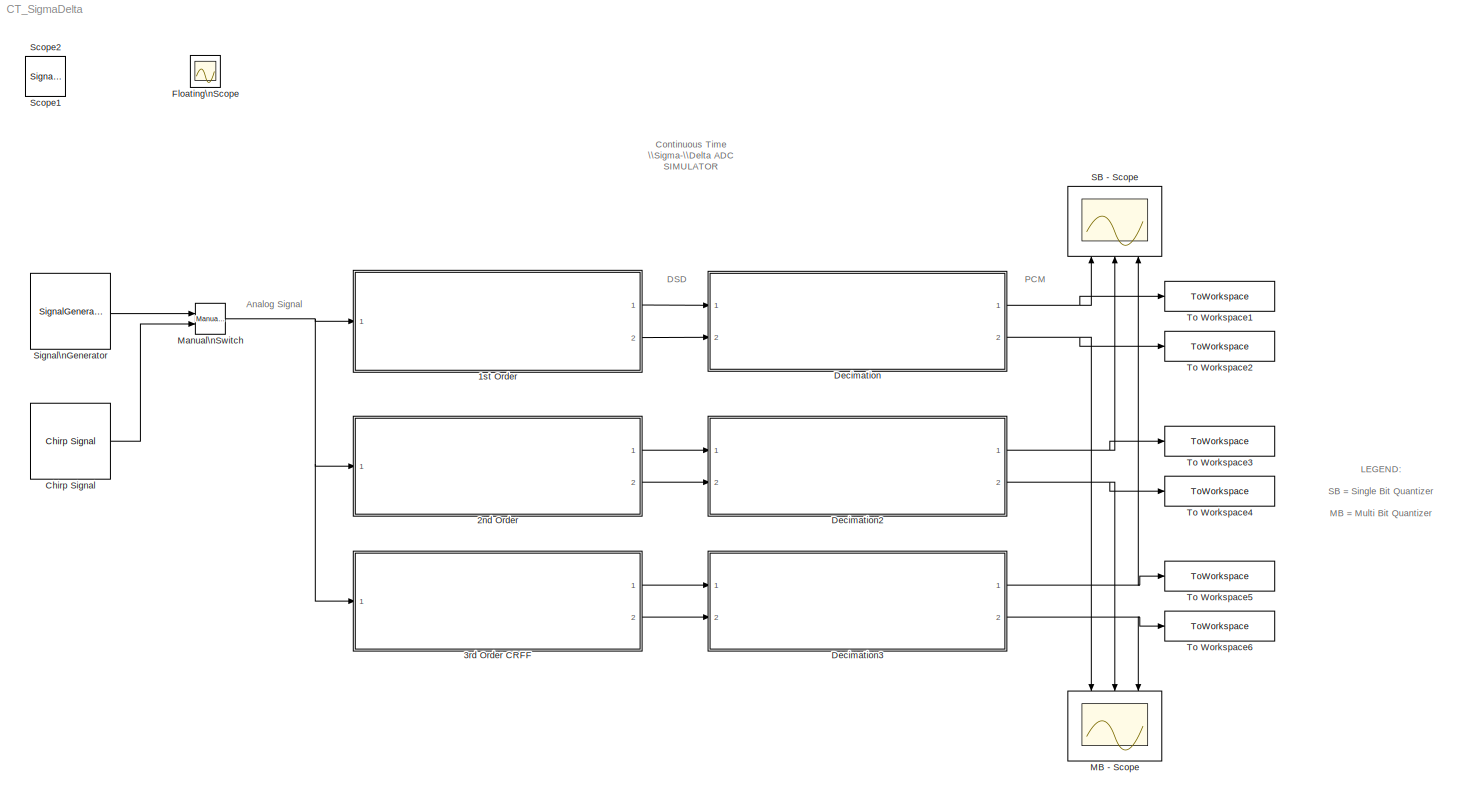
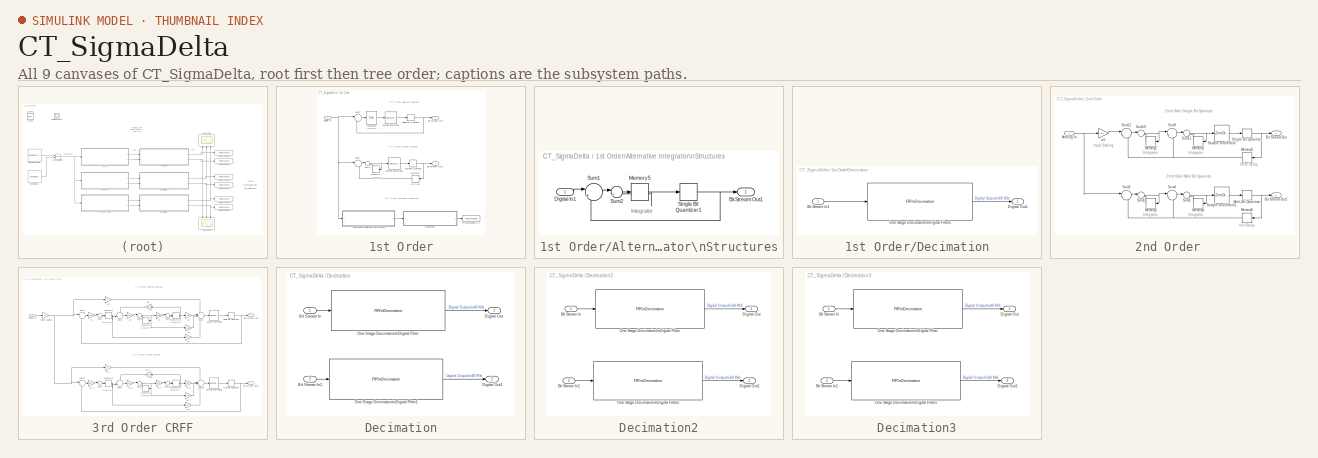
[diagram: thumbnail index - all 9 canvases of the model, root first then tree order]
MODEL CT_SigmaDelta
KIND model
CONFIG PreLoadFcn = load one_stage.mat
BLOCK [SubSystem] 1st Order
  FunctionWithSeparateData = off
  MaskHideContents = off
  MinAlgLoopOccurrences = off
  Opaque = off
  Ports = [1, 2]
  PropExecContextOutsideSubsystem = off
  RTWSystemCode = Auto
  RequestExecContextInheritance = off
  SID = 99
BLOCK [SubSystem] 1st Order/Alternative Integrator\nStructures
  FunctionWithSeparateData = off
  MaskHideContents = off
  MinAlgLoopOccurrences = off
  Opaque = off
  Ports = [1, 1]
  PropExecContextOutsideSubsystem = off
  RTWSystemCode = Auto
  RequestExecContextInheritance = off
  SID = 835
BLOCK [Outport] 1st Order/Alternative Integrator\nStructures/Bit Stream Out1
  IconDisplay = Port number
  OutDataTypeStr = double
  SID = 847
BLOCK [Inport] 1st Order/Alternative Integrator\nStructures/Digital In1
  IconDisplay = Port number
  SID = 837
BLOCK [Memory] 1st Order/Alternative Integrator\nStructures/Memory5
  InheritSampleTime = on
  LinearizeAsDelay = on
  SID = 861
BLOCK [Signum] 1st Order/Alternative Integrator\nStructures/Single Bit Quantizer1
  SID = 840
  SampleTime = 1/(48e3*64)
BLOCK [Sum] 1st Order/Alternative Integrator\nStructures/Sum1
  AccumDataTypeStr = double
  IconShape = round
  InputSameDT = off
  Inputs = |+-
  OutDataTypeStr = Inherit: Inherit via internal rule
  Ports = [2, 1]
  SID = 841
  SampleTime = 1/(48e3*64)
  SaturateOnIntegerOverflow = off
BLOCK [Sum] 1st Order/Alternative Integrator\nStructures/Sum2
  IconShape = round
  InputSameDT = off
  Inputs = |++
  OutDataTypeStr = Inherit: Inherit via internal rule
  Ports = [2, 1]
  SID = 842
  SaturateOnIntegerOverflow = off
BLOCK [Inport] 1st Order/Analog In 
  IconDisplay = Port number
  SID = 100
BLOCK [Outport] 1st Order/Bit Stream Out
  IconDisplay = Port number
  OutDataTypeStr = double
  SID = 733
BLOCK [Outport] 1st Order/Bit Stream Out1
  IconDisplay = Port number
  OutDataTypeStr = double
  Port = 2
  SID = 958
BLOCK [SubSystem] 1st Order/Decimation
  FunctionWithSeparateData = off
  MaskHideContents = off
  MinAlgLoopOccurrences = off
  Opaque = off
  Ports = [1, 1]
  PropExecContextOutsideSubsystem = off
  RTWSystemCode = Auto
  RequestExecContextInheritance = off
  SID = 850
BLOCK [Inport] 1st Order/Decimation/Bit Stream In1
  IconDisplay = Port number
  SID = 852
BLOCK [Outport] 1st Order/Decimation/Digital Out1
  IconDisplay = Port number
  SID = 856
BLOCK [Reference] 1st Order/Decimation/One Stage Decimation\nDigital Filter1  REF=dspmlti4/FIR\nDecimation
  D = 64
  FilterObject = h
  FilterSource = Filter object
  InputProcessing = Inherited (this choice will be removed - see release notes)
  LockScale = off
  Ports = [1, 1]
  SID = 854
  SourceBlock = dspmlti4/FIR\nDecimation
  SourceType = FIR Decimation
  Tag = BlockMethodSubSystem
  UserData = DataTag0
  UserDataPersistent = on
  accumDataTypeStr = Inherit: Inherit via internal rule
  accumFracLength = 30
  accumLastDataTypeStr = Inherit: Inherit via internal rule
  accumMode = Inherit via internal rule
  accumWordLength = 32
  additionalParams = off
  allowOverrides = on
  filtStruct = Direct form
  firstCoeffDataTypeStr = Inherit: Same word length as input
  firstCoeffFracLength = 15
  firstCoeffLastDataTypeStr = Inherit: Same word length as input
  firstCoeffMax = []
  firstCoeffMin = []
  firstCoeffMode = Same word length as input
  firstCoeffWordLength = 16
  framing = Maintain input frame size
  h = [1.55406407911568e-005 -4.02976869344532e-006 -3.62744882919974e-006 -3.32415900794419e-006 -3.10004007346292e-006 -2.94488775900927e-006 -2.84407867825443e-006 -2.79175810569639e-006 -2.77680534274625e-006 -2.79636876946116e-006 -2.84159739559419e-006 -2.91172216432913e-006 -2.99938731666961e-006 -3.10526988821609e-006 -3.22293122491583e-006 -3.35411175577608e-006 -3.49288760841827e-006 -3.641824...<+47050ch>  <repeated x7 — deduplicated; at blocks: One Stage Decimation\nDigital Filter1, One Stage Decimation\nDigital Filter>
  inputOffset = 0
  outputBufInitCond = 0
  outputDataTypeStr = Inherit: Same as accumulator
  outputFracLength = 15
  outputLastDataTypeStr = Inherit: Same as accumulator
  outputMax = []
  outputMin = []
  outputMode = Same as accumulator
  outputWordLength = 16
  overflowMode = off
  prodOutputDataTypeStr = Inherit: Inherit via internal rule
  prodOutputFracLength = 30
  prodOutputLastDataTypeStr = Inherit: Inherit via internal rule
  prodOutputMode = Inherit via internal rule
  prodOutputWordLength = 32
  roundingMode = Floor
BLOCK [Integrator] 1st Order/Integrator
  Ports = [1, 1]
  SID = 729
BLOCK [Memory] 1st Order/Memory1
  InheritSampleTime = on
  LinearizeAsDelay = on
  SID = 949
BLOCK [Memory] 1st Order/Memory2
  InheritSampleTime = on
  LinearizeAsDelay = on
  SID = 950
BLOCK [Quantizer] 1st Order/Multi-Bit Quantizer
  QuantizationInterval = 0.14
  SID = 809
  SampleTime = 1/(48e3*64)
BLOCK [ZeroOrderHold] 1st Order/Sample and\nHold
  SID = 730
  SampleTime = 1/(48e3*64)
BLOCK [ZeroOrderHold] 1st Order/Sample and\nHold1
  SID = 736
  SampleTime = 1/(48e3*64)
BLOCK [Signum] 1st Order/Single Bit Quantizer
  SID = 731
  SampleTime = 1/(48e3*64)
BLOCK [Sum] 1st Order/Sum1
  AccumDataTypeStr = double
  IconShape = round
  InputSameDT = off
  Inputs = |+-
  OutDataTypeStr = Inherit: Inherit via internal rule
  Ports = [2, 1]
  SID = 738
  SampleTime = 1/(48e3*64)
  SaturateOnIntegerOverflow = off
BLOCK [Sum] 1st Order/Sum2
  AccumDataTypeStr = double
  IconShape = round
  InputSameDT = off
  Inputs = |+-
  OutDataTypeStr = Inherit: Inherit via internal rule
  Ports = [2, 1]
  SID = 732
  SampleTime = 1/(48e3*64)
  SaturateOnIntegerOverflow = off
BLOCK [Sum] 1st Order/Sum4
  IconShape = round
  InputSameDT = off
  Inputs = |++
  OutDataTypeStr = Inherit: Inherit via internal rule
  Ports = [2, 1]
  SID = 953
  SaturateOnIntegerOverflow = off
BLOCK [ToWorkspace] 1st Order/To Workspace 1.2
  MaxDataPoints = inf
  Ports = [1]
  SID = 858
  SampleTime = -1
  VariableName = SBO1d
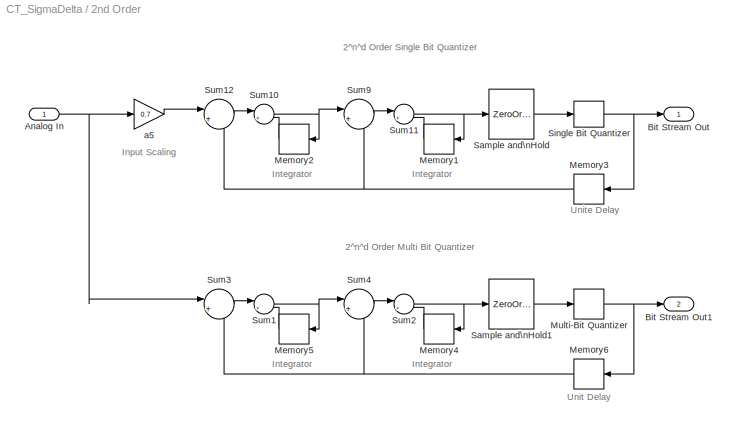
BLOCK [SubSystem] 2nd Order  
  FunctionWithSeparateData = off
  MaskHideContents = off
  MinAlgLoopOccurrences = off
  Opaque = off
  Ports = [1, 2]
  PropExecContextOutsideSubsystem = off
  RTWSystemCode = Auto
  RequestExecContextInheritance = off
  SID = 1
BLOCK [Inport] 2nd Order  /Analog In
  IconDisplay = Port number
  SID = 2
BLOCK [Outport] 2nd Order  /Bit Stream Out
  IconDisplay = Port number
  OutDataTypeStr = double
  SID = 752
BLOCK [Outport] 2nd Order  /Bit Stream Out1
  IconDisplay = Port number
  OutDataTypeStr = double
  Port = 2
  SID = 763
BLOCK [Memory] 2nd Order  /Memory1
  InheritSampleTime = on
  LinearizeAsDelay = on
  SID = 741
BLOCK [Memory] 2nd Order  /Memory2
  InheritSampleTime = on
  LinearizeAsDelay = on
  SID = 742
BLOCK [Memory] 2nd Order  /Memory3
  InheritSampleTime = on
  LinearizeAsDelay = on
  SID = 960
BLOCK [Memory] 2nd Order  /Memory4
  InheritSampleTime = on
  LinearizeAsDelay = on
  SID = 754
BLOCK [Memory] 2nd Order  /Memory5
  InheritSampleTime = on
  LinearizeAsDelay = on
  SID = 755
BLOCK [Memory] 2nd Order  /Memory6
  InheritSampleTime = on
  LinearizeAsDelay = on
  SID = 961
BLOCK [Quantizer] 2nd Order  /Multi-Bit Quantizer
  QuantizationInterval = 0.15
  SID = 753
  SampleTime = 1/(48e3*64)
BLOCK [ZeroOrderHold] 2nd Order  /Sample and\nHold
  SID = 744
  SampleTime = 1/(48e3*64)
BLOCK [ZeroOrderHold] 2nd Order  /Sample and\nHold1
  SID = 757
  SampleTime = 1/(48e3*64)
BLOCK [Signum] 2nd Order  /Single Bit Quantizer
  SID = 745
  SampleTime = 1/(48e3*64)
BLOCK [Sum] 2nd Order  /Sum1
  IconShape = round
  InputSameDT = off
  Inputs = |++
  OutDataTypeStr = Inherit: Inherit via internal rule
  Ports = [2, 1]
  SID = 759
  SampleTime = 1/(48e3*64)
  SaturateOnIntegerOverflow = off
BLOCK [Sum] 2nd Order  /Sum10
  IconShape = round
  InputSameDT = off
  Inputs = |++
  OutDataTypeStr = Inherit: Inherit via internal rule
  Ports = [2, 1]
  SID = 747
  SampleTime = 1/(48e3*64)
  SaturateOnIntegerOverflow = off
BLOCK [Sum] 2nd Order  /Sum11
  IconShape = round
  InputSameDT = off
  Inputs = |++
  OutDataTypeStr = Inherit: Inherit via internal rule
  Ports = [2, 1]
  SID = 748
  SampleTime = 1/(48e3*64)
  SaturateOnIntegerOverflow = off
BLOCK [Sum] 2nd Order  /Sum12
  AccumDataTypeStr = double
  IconShape = round
  InputSameDT = off
  Inputs = |+-
  OutDataTypeStr = Inherit: Inherit via internal rule
  Ports = [2, 1]
  SID = 749
  SampleTime = 1/(48e3*64)
  SaturateOnIntegerOverflow = off
BLOCK [Sum] 2nd Order  /Sum2
  IconShape = round
  InputSameDT = off
  Inputs = |++
  OutDataTypeStr = Inherit: Inherit via internal rule
  Ports = [2, 1]
  SID = 760
  SampleTime = 1/(48e3*64)
  SaturateOnIntegerOverflow = off
BLOCK [Sum] 2nd Order  /Sum3
  AccumDataTypeStr = double
  IconShape = round
  InputSameDT = off
  Inputs = |+-
  OutDataTypeStr = Inherit: Inherit via internal rule
  Ports = [2, 1]
  SID = 761
  SampleTime = 1/(48e3*64)
  SaturateOnIntegerOverflow = off
BLOCK [Sum] 2nd Order  /Sum4
  AccumDataTypeStr = double
  IconShape = round
  InputSameDT = off
  Inputs = |+-
  OutDataTypeStr = Inherit: Inherit via internal rule
  Ports = [2, 1]
  SID = 762
  SampleTime = 1/(48e3*64)
  SaturateOnIntegerOverflow = off
BLOCK [Sum] 2nd Order  /Sum9
  AccumDataTypeStr = double
  IconShape = round
  InputSameDT = off
  Inputs = |+-
  OutDataTypeStr = Inherit: Inherit via internal rule
  Ports = [2, 1]
  SID = 746
  SampleTime = 1/(48e3*64)
  SaturateOnIntegerOverflow = off
BLOCK [Gain] 2nd Order  /a5
  Gain = 0.7
  OutDataTypeStr = Inherit: Inherit via internal rule
  ParamDataTypeStr = Inherit: Inherit via internal rule
  SID = 702
  SampleTime = 1/(48e3*64)
  SaturateOnIntegerOverflow = off
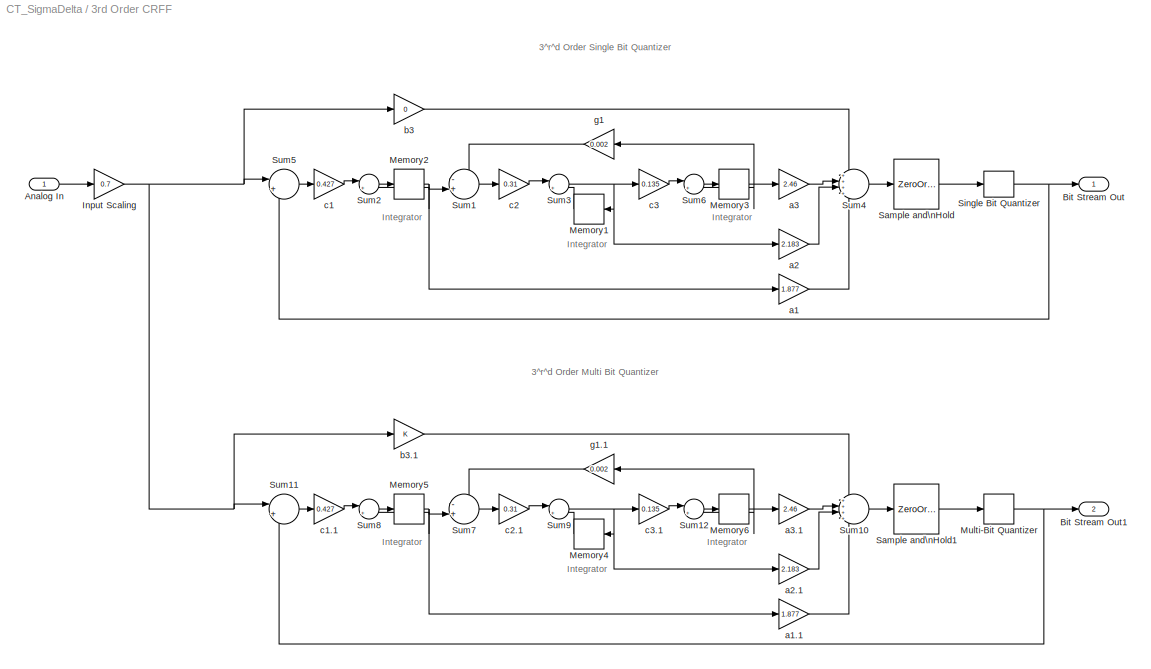
BLOCK [SubSystem] 3rd Order CRFF
  FunctionWithSeparateData = off
  MaskHideContents = off
  MinAlgLoopOccurrences = off
  Opaque = off
  Ports = [1, 2]
  PropExecContextOutsideSubsystem = off
  RTWSystemCode = Auto
  RequestExecContextInheritance = off
  SID = 218
BLOCK [Inport] 3rd Order CRFF/Analog In
  IconDisplay = Port number
  SID = 219
BLOCK [Outport] 3rd Order CRFF/Bit Stream Out
  IconDisplay = Port number
  OutDataTypeStr = double
  SID = 785
BLOCK [Outport] 3rd Order CRFF/Bit Stream Out1
  IconDisplay = Port number
  OutDataTypeStr = double
  Port = 2
  SID = 806
BLOCK [Gain] 3rd Order CRFF/Input Scaling
  Gain = 0.7
  OutDataTypeStr = Inherit: Inherit via internal rule
  ParamDataTypeStr = Inherit: Inherit via internal rule
  SID = 693
  SampleTime = 1/(48e3*64)
  SaturateOnIntegerOverflow = off
BLOCK [Memory] 3rd Order CRFF/Memory1
  InheritSampleTime = on
  LinearizeAsDelay = on
  SID = 766
BLOCK [Memory] 3rd Order CRFF/Memory2
  InheritSampleTime = on
  LinearizeAsDelay = on
  SID = 767
BLOCK [Memory] 3rd Order CRFF/Memory3
  InheritSampleTime = on
  LinearizeAsDelay = on
  SID = 768
BLOCK [Memory] 3rd Order CRFF/Memory4
  InheritSampleTime = on
  LinearizeAsDelay = on
  SID = 787
BLOCK [Memory] 3rd Order CRFF/Memory5
  InheritSampleTime = on
  LinearizeAsDelay = on
  SID = 788
BLOCK [Memory] 3rd Order CRFF/Memory6
  InheritSampleTime = on
  LinearizeAsDelay = on
  SID = 789
BLOCK [Quantizer] 3rd Order CRFF/Multi-Bit Quantizer
  QuantizationInterval = 0.125
  SID = 786
  SampleTime = 1/(48e3*64)
BLOCK [ZeroOrderHold] 3rd Order CRFF/Sample and\nHold
  SID = 769
  SampleTime = 1/(48e3*64)
BLOCK [ZeroOrderHold] 3rd Order CRFF/Sample and\nHold1
  SID = 790
  SampleTime = 1/(48e3*64)
BLOCK [Signum] 3rd Order CRFF/Single Bit Quantizer
  SID = 770
  SampleTime = 1/(48e3*64)
BLOCK [Sum] 3rd Order CRFF/Sum1
  AccumDataTypeStr = double
  IconShape = round
  InputSameDT = off
  Inputs = -+|
  OutDataTypeStr = Inherit: Inherit via internal rule
  Ports = [2, 1]
  SID = 771
  SampleTime = 1/(48e3*64)
  SaturateOnIntegerOverflow = off
BLOCK [Sum] 3rd Order CRFF/Sum10
  AccumDataTypeStr = double
  IconShape = round
  InputSameDT = off
  Inputs = ++++
  OutDataTypeStr = Inherit: Inherit via internal rule
  Ports = [4, 1]
  SID = 795
  SampleTime = 1/(48e3*64)
  SaturateOnIntegerOverflow = off
BLOCK [Sum] 3rd Order CRFF/Sum11
  AccumDataTypeStr = double
  IconShape = round
  InputSameDT = off
  Inputs = |+-
  OutDataTypeStr = Inherit: Inherit via internal rule
  Ports = [2, 1]
  SID = 796
  SampleTime = 1/(48e3*64)
  SaturateOnIntegerOverflow = off
BLOCK [Sum] 3rd Order CRFF/Sum12
  IconShape = round
  InputSameDT = off
  Inputs = |++
  OutDataTypeStr = Inherit: Inherit via internal rule
  Ports = [2, 1]
  SID = 797
  SampleTime = 1/(48e3*64)
  SaturateOnIntegerOverflow = off
BLOCK [Sum] 3rd Order CRFF/Sum2
  IconShape = round
  InputSameDT = off
  Inputs = |++
  OutDataTypeStr = Inherit: Inherit via internal rule
  Ports = [2, 1]
  SID = 772
  SampleTime = 1/(48e3*64)
  SaturateOnIntegerOverflow = off
BLOCK [Sum] 3rd Order CRFF/Sum3
  IconShape = round
  InputSameDT = off
  Inputs = |++
  OutDataTypeStr = Inherit: Inherit via internal rule
  Ports = [2, 1]
  SID = 773
  SampleTime = 1/(48e3*64)
  SaturateOnIntegerOverflow = off
BLOCK [Sum] 3rd Order CRFF/Sum4
  AccumDataTypeStr = double
  IconShape = round
  InputSameDT = off
  Inputs = ++++
  OutDataTypeStr = Inherit: Inherit via internal rule
  Ports = [4, 1]
  SID = 774
  SampleTime = 1/(48e3*64)
  SaturateOnIntegerOverflow = off
BLOCK [Sum] 3rd Order CRFF/Sum5
  AccumDataTypeStr = double
  IconShape = round
  InputSameDT = off
  Inputs = |+-
  OutDataTypeStr = Inherit: Inherit via internal rule
  Ports = [2, 1]
  SID = 775
  SampleTime = 1/(48e3*64)
  SaturateOnIntegerOverflow = off
BLOCK [Sum] 3rd Order CRFF/Sum6
  IconShape = round
  InputSameDT = off
  Inputs = |++
  OutDataTypeStr = Inherit: Inherit via internal rule
  Ports = [2, 1]
  SID = 776
  SampleTime = 1/(48e3*64)
  SaturateOnIntegerOverflow = off
BLOCK [Sum] 3rd Order CRFF/Sum7
  AccumDataTypeStr = double
  IconShape = round
  InputSameDT = off
  Inputs = -+|
  OutDataTypeStr = Inherit: Inherit via internal rule
  Ports = [2, 1]
  SID = 792
  SampleTime = 1/(48e3*64)
  SaturateOnIntegerOverflow = off
BLOCK [Sum] 3rd Order CRFF/Sum8
  IconShape = round
  InputSameDT = off
  Inputs = |++
  OutDataTypeStr = Inherit: Inherit via internal rule
  Ports = [2, 1]
  SID = 793
  SampleTime = 1/(48e3*64)
  SaturateOnIntegerOverflow = off
BLOCK [Sum] 3rd Order CRFF/Sum9
  IconShape = round
  InputSameDT = off
  Inputs = |++
  OutDataTypeStr = Inherit: Inherit via internal rule
  Ports = [2, 1]
  SID = 794
  SampleTime = 1/(48e3*64)
  SaturateOnIntegerOverflow = off
BLOCK [Gain] 3rd Order CRFF/a1
  Gain = 1.877
  OutDataTypeStr = Inherit: Inherit via internal rule
  ParamDataTypeStr = Inherit: Inherit via internal rule
  SID = 777
  SampleTime = 1/(48e3*64)
  SaturateOnIntegerOverflow = off
BLOCK [Gain] 3rd Order CRFF/a1.1
  Gain = 1.877
  OutDataTypeStr = Inherit: Inherit via internal rule
  ParamDataTypeStr = Inherit: Inherit via internal rule
  SID = 798
  SampleTime = 1/(48e3*64)
  SaturateOnIntegerOverflow = off
BLOCK [Gain] 3rd Order CRFF/a2
  Gain = 2.183
  OutDataTypeStr = Inherit: Inherit via internal rule
  ParamDataTypeStr = Inherit: Inherit via internal rule
  SID = 778
  SampleTime = 1/(48e3*64)
  SaturateOnIntegerOverflow = off
BLOCK [Gain] 3rd Order CRFF/a2.1
  Gain = 2.183
  OutDataTypeStr = Inherit: Inherit via internal rule
  ParamDataTypeStr = Inherit: Inherit via internal rule
  SID = 799
  SampleTime = 1/(48e3*64)
  SaturateOnIntegerOverflow = off
BLOCK [Gain] 3rd Order CRFF/a3
  Gain = 2.46
  OutDataTypeStr = Inherit: Inherit via internal rule
  ParamDataTypeStr = Inherit: Inherit via internal rule
  SID = 779
  SampleTime = 1/(48e3*64)
  SaturateOnIntegerOverflow = off
BLOCK [Gain] 3rd Order CRFF/a3.1
  Gain = 2.46
  OutDataTypeStr = Inherit: Inherit via internal rule
  ParamDataTypeStr = Inherit: Inherit via internal rule
  SID = 800
  SampleTime = 1/(48e3*64)
  SaturateOnIntegerOverflow = off
BLOCK [Gain] 3rd Order CRFF/b3
  Gain = 0
  OutDataTypeStr = Inherit: Inherit via internal rule
  ParamDataTypeStr = Inherit: Inherit via internal rule
  SID = 780
  SampleTime = 1/(48e3*64)
  SaturateOnIntegerOverflow = off
BLOCK [Gain] 3rd Order CRFF/b3.1
  OutDataTypeStr = Inherit: Inherit via internal rule
  ParamDataTypeStr = Inherit: Inherit via internal rule
  SID = 801
  SampleTime = 1/(48e3*64)
  SaturateOnIntegerOverflow = off
BLOCK [Gain] 3rd Order CRFF/c1
  Gain = 0.427
  OutDataTypeStr = Inherit: Inherit via internal rule
  ParamDataTypeStr = Inherit: Inherit via internal rule
  SID = 781
  SampleTime = 1/(48e3*64)
  SaturateOnIntegerOverflow = off
BLOCK [Gain] 3rd Order CRFF/c1.1
  Gain = 0.427
  OutDataTypeStr = Inherit: Inherit via internal rule
  ParamDataTypeStr = Inherit: Inherit via internal rule
  SID = 802
  SampleTime = 1/(48e3*64)
  SaturateOnIntegerOverflow = off
BLOCK [Gain] 3rd Order CRFF/c2
  Gain = 0.31
  OutDataTypeStr = Inherit: Inherit via internal rule
  ParamDataTypeStr = Inherit: Inherit via internal rule
  SID = 782
  SampleTime = 1/(48e3*64)
  SaturateOnIntegerOverflow = off
BLOCK [Gain] 3rd Order CRFF/c2.1
  Gain = 0.31
  OutDataTypeStr = Inherit: Inherit via internal rule
  ParamDataTypeStr = Inherit: Inherit via internal rule
  SID = 803
  SampleTime = 1/(48e3*64)
  SaturateOnIntegerOverflow = off
BLOCK [Gain] 3rd Order CRFF/c3
  Gain = 0.135
  OutDataTypeStr = Inherit: Inherit via internal rule
  ParamDataTypeStr = Inherit: Inherit via internal rule
  SID = 783
  SampleTime = 1/(48e3*64)
  SaturateOnIntegerOverflow = off
BLOCK [Gain] 3rd Order CRFF/c3.1
  Gain = 0.135
  OutDataTypeStr = Inherit: Inherit via internal rule
  ParamDataTypeStr = Inherit: Inherit via internal rule
  SID = 804
  SampleTime = 1/(48e3*64)
  SaturateOnIntegerOverflow = off
BLOCK [Gain] 3rd Order CRFF/g1
  Gain = 0.002
  OutDataTypeStr = Inherit: Inherit via internal rule
  ParamDataTypeStr = Inherit: Inherit via internal rule
  SID = 784
  SampleTime = 1/(48e3*64)
  SaturateOnIntegerOverflow = off
BLOCK [Gain] 3rd Order CRFF/g1.1
  Gain = 0.002
  OutDataTypeStr = Inherit: Inherit via internal rule
  ParamDataTypeStr = Inherit: Inherit via internal rule
  SID = 805
  SampleTime = 1/(48e3*64)
  SaturateOnIntegerOverflow = off
BLOCK [Reference] Chirp Signal  REF=simulink/Sources/Chirp Signal
  Ports = [0, 1]
  SID = 820
  SourceBlock = simulink/Sources/Chirp Signal
  SourceType = chirp
  T = 24/24
  VectorParams1D = on
  f1 = 0.1
  f2 = 10000
BLOCK [SubSystem] Decimation
  FunctionWithSeparateData = off
  MaskHideContents = off
  MinAlgLoopOccurrences = off
  Opaque = off
  Ports = [2, 2]
  PropExecContextOutsideSubsystem = off
  RTWSystemCode = Auto
  RequestExecContextInheritance = off
  SID = 14
BLOCK [Inport] Decimation/Bit Stream In
  IconDisplay = Port number
  SID = 15
BLOCK [Inport] Decimation/Bit Stream In1
  IconDisplay = Port number
  Port = 2
  SID = 495
BLOCK [Outport] Decimation/Digital Out
  IconDisplay = Port number
  SID = 17
BLOCK [Outport] Decimation/Digital Out1
  IconDisplay = Port number
  Port = 2
  SID = 497
BLOCK [Reference] Decimation/One Stage Decimation\nDigital Filter  REF=dspmlti4/FIR\nDecimation
  D = 64
  FilterObject = h
  FilterSource = Filter object
  InputProcessing = Inherited (this choice will be removed - see release notes)
  LockScale = off
  Ports = [1, 1]
  SID = 16
  SourceBlock = dspmlti4/FIR\nDecimation
  SourceType = FIR Decimation
  Tag = BlockMethodSubSystem
  UserData = DataTag1
  UserDataPersistent = on
  accumDataTypeStr = Inherit: Inherit via internal rule
  accumFracLength = 30
  accumLastDataTypeStr = Inherit: Inherit via internal rule
  accumMode = Inherit via internal rule
  accumWordLength = 32
  additionalParams = off
  allowOverrides = on
  filtStruct = Direct form
  firstCoeffDataTypeStr = Inherit: Same word length as input
  firstCoeffFracLength = 15
  firstCoeffLastDataTypeStr = Inherit: Same word length as input
  firstCoeffMax = []
  firstCoeffMin = []
  firstCoeffMode = Same word length as input
  firstCoeffWordLength = 16
  framing = Maintain input frame size
  inputOffset = 0
  outputBufInitCond = 0
  outputDataTypeStr = Inherit: Same as accumulator
  outputFracLength = 15
  outputLastDataTypeStr = Inherit: Same as accumulator
  outputMax = []
  outputMin = []
  outputMode = Same as accumulator
  outputWordLength = 16
  overflowMode = off
  prodOutputDataTypeStr = Inherit: Inherit via internal rule
  prodOutputFracLength = 30
  prodOutputLastDataTypeStr = Inherit: Inherit via internal rule
  prodOutputMode = Inherit via internal rule
  prodOutputWordLength = 32
  roundingMode = Floor
BLOCK [Reference] Decimation/One Stage Decimation\nDigital Filter1  REF=dspmlti4/FIR\nDecimation
  D = 64
  FilterObject = h
  FilterSource = Filter object
  InputProcessing = Inherited (this choice will be removed - see release notes)
  LockScale = off
  Ports = [1, 1]
  SID = 496
  SourceBlock = dspmlti4/FIR\nDecimation
  SourceType = FIR Decimation
  Tag = BlockMethodSubSystem
  UserData = DataTag2
  UserDataPersistent = on
  accumDataTypeStr = Inherit: Inherit via internal rule
  accumFracLength = 30
  accumLastDataTypeStr = Inherit: Inherit via internal rule
  accumMode = Inherit via internal rule
  accumWordLength = 32
  additionalParams = off
  allowOverrides = on
  filtStruct = Direct form
  firstCoeffDataTypeStr = Inherit: Same word length as input
  firstCoeffFracLength = 15
  firstCoeffLastDataTypeStr = Inherit: Same word length as input
  firstCoeffMax = []
  firstCoeffMin = []
  firstCoeffMode = Same word length as input
  firstCoeffWordLength = 16
  framing = Maintain input frame size
  inputOffset = 0
  outputBufInitCond = 0
  outputDataTypeStr = Inherit: Same as accumulator
  outputFracLength = 15
  outputLastDataTypeStr = Inherit: Same as accumulator
  outputMax = []
  outputMin = []
  outputMode = Same as accumulator
  outputWordLength = 16
  overflowMode = off
  prodOutputDataTypeStr = Inherit: Inherit via internal rule
  prodOutputFracLength = 30
  prodOutputLastDataTypeStr = Inherit: Inherit via internal rule
  prodOutputMode = Inherit via internal rule
  prodOutputWordLength = 32
  roundingMode = Floor
BLOCK [SubSystem] Decimation2
  FunctionWithSeparateData = off
  MaskHideContents = off
  MinAlgLoopOccurrences = off
  Opaque = off
  Ports = [2, 2]
  PropExecContextOutsideSubsystem = off
  RTWSystemCode = Auto
  RequestExecContextInheritance = off
  SID = 177
BLOCK [Inport] Decimation2/Bit Stream In
  IconDisplay = Port number
  SID = 178
BLOCK [Inport] Decimation2/Bit Stream In1
  IconDisplay = Port number
  Port = 2
  SID = 521
BLOCK [Outport] Decimation2/Digital  Out
  IconDisplay = Port number
  SID = 180
BLOCK [Outport] Decimation2/Digital Out1
  IconDisplay = Port number
  Port = 2
  SID = 523
BLOCK [Reference] Decimation2/One Stage Decimation\nDigital Filter  REF=dspmlti4/FIR\nDecimation
  D = 64
  FilterObject = h
  FilterSource = Filter object
  InputProcessing = Inherited (this choice will be removed - see release notes)
  LockScale = off
  Ports = [1, 1]
  SID = 179
  SourceBlock = dspmlti4/FIR\nDecimation
  SourceType = FIR Decimation
  Tag = BlockMethodSubSystem
  UserData = DataTag3
  UserDataPersistent = on
  accumDataTypeStr = Inherit: Inherit via internal rule
  accumFracLength = 30
  accumLastDataTypeStr = Inherit: Inherit via internal rule
  accumMode = Inherit via internal rule
  accumWordLength = 32
  additionalParams = off
  allowOverrides = on
  filtStruct = Direct form
  firstCoeffDataTypeStr = Inherit: Same word length as input
  firstCoeffFracLength = 15
  firstCoeffLastDataTypeStr = Inherit: Same word length as input
  firstCoeffMax = []
  firstCoeffMin = []
  firstCoeffMode = Same word length as input
  firstCoeffWordLength = 16
  framing = Maintain input frame size
  inputOffset = 0
  outputBufInitCond = 0
  outputDataTypeStr = Inherit: Same as accumulator
  outputFracLength = 15
  outputLastDataTypeStr = Inherit: Same as accumulator
  outputMax = []
  outputMin = []
  outputMode = Same as accumulator
  outputWordLength = 16
  overflowMode = off
  prodOutputDataTypeStr = Inherit: Inherit via internal rule
  prodOutputFracLength = 30
  prodOutputLastDataTypeStr = Inherit: Inherit via internal rule
  prodOutputMode = Inherit via internal rule
  prodOutputWordLength = 32
  roundingMode = Floor
BLOCK [Reference] Decimation2/One Stage Decimation\nDigital Filter1  REF=dspmlti4/FIR\nDecimation
  D = 64
  FilterObject = h
  FilterSource = Filter object
  InputProcessing = Inherited (this choice will be removed - see release notes)
  LockScale = off
  Ports = [1, 1]
  SID = 522
  SourceBlock = dspmlti4/FIR\nDecimation
  SourceType = FIR Decimation
  Tag = BlockMethodSubSystem
  UserData = DataTag4
  UserDataPersistent = on
  accumDataTypeStr = Inherit: Inherit via internal rule
  accumFracLength = 30
  accumLastDataTypeStr = Inherit: Inherit via internal rule
  accumMode = Inherit via internal rule
  accumWordLength = 32
  additionalParams = off
  allowOverrides = on
  filtStruct = Direct form
  firstCoeffDataTypeStr = Inherit: Same word length as input
  firstCoeffFracLength = 15
  firstCoeffLastDataTypeStr = Inherit: Same word length as input
  firstCoeffMax = []
  firstCoeffMin = []
  firstCoeffMode = Same word length as input
  firstCoeffWordLength = 16
  framing = Maintain input frame size
  inputOffset = 0
  outputBufInitCond = 0
  outputDataTypeStr = Inherit: Same as accumulator
  outputFracLength = 15
  outputLastDataTypeStr = Inherit: Same as accumulator
  outputMax = []
  outputMin = []
  outputMode = Same as accumulator
  outputWordLength = 16
  overflowMode = off
  prodOutputDataTypeStr = Inherit: Inherit via internal rule
  prodOutputFracLength = 30
  prodOutputLastDataTypeStr = Inherit: Inherit via internal rule
  prodOutputMode = Inherit via internal rule
  prodOutputWordLength = 32
  roundingMode = Floor
BLOCK [SubSystem] Decimation3
  FunctionWithSeparateData = off
  MaskHideContents = off
  MinAlgLoopOccurrences = off
  Opaque = off
  Ports = [2, 2]
  PropExecContextOutsideSubsystem = off
  RTWSystemCode = Auto
  RequestExecContextInheritance = off
  SID = 547
BLOCK [Inport] Decimation3/Bit Stream In
  IconDisplay = Port number
  SID = 548
BLOCK [Inport] Decimation3/Bit Stream In1
  IconDisplay = Port number
  Port = 2
  SID = 549
BLOCK [Outport] Decimation3/Digital  Out
  IconDisplay = Port number
  SID = 552
BLOCK [Outport] Decimation3/Digital Out1
  IconDisplay = Port number
  Port = 2
  SID = 553
BLOCK [Reference] Decimation3/One Stage Decimation\nDigital Filter  REF=dspmlti4/FIR\nDecimation
  D = 64
  FilterObject = h
  FilterSource = Filter object
  InputProcessing = Inherited (this choice will be removed - see release notes)
  LockScale = off
  Ports = [1, 1]
  SID = 550
  SourceBlock = dspmlti4/FIR\nDecimation
  SourceType = FIR Decimation
  Tag = BlockMethodSubSystem
  UserData = DataTag5
  UserDataPersistent = on
  accumDataTypeStr = Inherit: Inherit via internal rule
  accumFracLength = 30
  accumLastDataTypeStr = Inherit: Inherit via internal rule
  accumMode = Inherit via internal rule
  accumWordLength = 32
  additionalParams = off
  allowOverrides = on
  filtStruct = Direct form
  firstCoeffDataTypeStr = Inherit: Same word length as input
  firstCoeffFracLength = 15
  firstCoeffLastDataTypeStr = Inherit: Same word length as input
  firstCoeffMax = []
  firstCoeffMin = []
  firstCoeffMode = Same word length as input
  firstCoeffWordLength = 16
  framing = Maintain input frame size
  inputOffset = 0
  outputBufInitCond = 0
  outputDataTypeStr = Inherit: Same as accumulator
  outputFracLength = 15
  outputLastDataTypeStr = Inherit: Same as accumulator
  outputMax = []
  outputMin = []
  outputMode = Same as accumulator
  outputWordLength = 16
  overflowMode = off
  prodOutputDataTypeStr = Inherit: Inherit via internal rule
  prodOutputFracLength = 30
  prodOutputLastDataTypeStr = Inherit: Inherit via internal rule
  prodOutputMode = Inherit via internal rule
  prodOutputWordLength = 32
  roundingMode = Floor
BLOCK [Reference] Decimation3/One Stage Decimation\nDigital Filter1  REF=dspmlti4/FIR\nDecimation
  D = 64
  FilterObject = h
  FilterSource = Filter object
  InputProcessing = Inherited (this choice will be removed - see release notes)
  LockScale = off
  Ports = [1, 1]
  SID = 551
  SourceBlock = dspmlti4/FIR\nDecimation
  SourceType = FIR Decimation
  Tag = BlockMethodSubSystem
  UserData = DataTag6
  UserDataPersistent = on
  accumDataTypeStr = Inherit: Inherit via internal rule
  accumFracLength = 30
  accumLastDataTypeStr = Inherit: Inherit via internal rule
  accumMode = Inherit via internal rule
  accumWordLength = 32
  additionalParams = off
  allowOverrides = on
  filtStruct = Direct form
  firstCoeffDataTypeStr = Inherit: Same word length as input
  firstCoeffFracLength = 15
  firstCoeffLastDataTypeStr = Inherit: Same word length as input
  firstCoeffMax = []
  firstCoeffMin = []
  firstCoeffMode = Same word length as input
  firstCoeffWordLength = 16
  framing = Maintain input frame size
  inputOffset = 0
  outputBufInitCond = 0
  outputDataTypeStr = Inherit: Same as accumulator
  outputFracLength = 15
  outputLastDataTypeStr = Inherit: Same as accumulator
  outputMax = []
  outputMin = []
  outputMode = Same as accumulator
  outputWordLength = 16
  overflowMode = off
  prodOutputDataTypeStr = Inherit: Inherit via internal rule
  prodOutputFracLength = 30
  prodOutputLastDataTypeStr = Inherit: Inherit via internal rule
  prodOutputMode = Inherit via internal rule
  prodOutputWordLength = 32
  roundingMode = Floor
BLOCK [Scope] Floating\nScope
  DataFormat = StructureWithTime
  Floating = on
  IOType = viewer
  NumInputPorts = 1
  Ports = []
  SID = 19
  SampleTime = 0
  SaveName = ScopeData1
  ShowLegends = off
  YMax = 1
  YMin = -1
BLOCK [Scope] MB - Scope
  DataFormat = StructureWithTime
  Floating = off
  LimitDataPoints = off
  NumInputPorts = 3
  Ports = [3]
  SID = 719
  SampleTime = 0
  SaveName = ScopeData2
  ShowLegends = on
  TimeRange = 0.008
  YMax = 1.25~1.25~1.25
  YMin = -1.25~-1.25~-1.25
  ZoomMode = xonly
BLOCK [Reference] Manual\nSwitch  REF=simulink/Signal\nRouting/Manual Switch
  Ports = [2, 1]
  SID = 819
  SourceBlock = simulink/Signal\nRouting/Manual Switch
  SourceType = Manual Switch
  action = 0
  sw = 1
  varsize = off
BLOCK [Scope] SB - Scope
  DataFormat = StructureWithTime
  Floating = off
  LegendLocations = 0.73397     0.85956     0.22785    0.066401\n0.72637     0.55677     0.23544    0.066401\n0.72637     0.25598     0.23544    0.066401
  LimitDataPoints = off
  NumInputPorts = 3
  Ports = [3]
  SID = 716
  SampleTime = 0
  ShowLegends = on
  TimeRange = 0.008
  YMax = 1.25~1.25~0.75
  YMin = -1.25~-1.25~-0.75
  ZoomMode = xonly
BLOCK [SignalViewerScope] Scope1
  IOType = viewer
  MaxDataPoints = 7500
  NumInputPorts = 1
  Ports = []
  RefreshTime = 0.035000
  SID = 20
  ShowDataMarkers = off
  ShowLegends = off
BLOCK [SignalViewerScope] Scope2
  IOType = viewer
  MaxDataPoints = 7500
  NumInputPorts = 1
  Ports = []
  RefreshTime = 0.035000
  SID = 21
  SaveName = ScopeData1
  ShowDataMarkers = off
  ShowLegends = off
BLOCK [SignalGenerator] Signal\nGenerator
  Frequency = 6283
  Ports = [0, 1]
  SID = 481
  Units = rad/sec
BLOCK [ToWorkspace] To Workspace1
  MaxDataPoints = inf
  Ports = [1]
  SID = 723
  SampleTime = -1
  VariableName = SBO1
BLOCK [ToWorkspace] To Workspace2
  MaxDataPoints = inf
  Ports = [1]
  SID = 724
  SampleTime = -1
  VariableName = MBO1
BLOCK [ToWorkspace] To Workspace3
  MaxDataPoints = inf
  Ports = [1]
  SID = 721
  SampleTime = -1
  VariableName = SBO2
BLOCK [ToWorkspace] To Workspace4
  MaxDataPoints = inf
  Ports = [1]
  SID = 722
  SampleTime = -1
  VariableName = MBO2
BLOCK [ToWorkspace] To Workspace5
  MaxDataPoints = inf
  Ports = [1]
  SID = 555
  SampleTime = -1
  VariableName = SBO3
BLOCK [ToWorkspace] To Workspace6
  MaxDataPoints = inf
  Ports = [1]
  SID = 554
  SampleTime = -1
  VariableName = MBO3
ANNOTATION (root): Analog Signal
ANNOTATION (root): Continuous Time \n\\Sigma-\\Delta ADC \nSIMULATOR
ANNOTATION (root): DSD
ANNOTATION (root): LEGEND:\n\nSB = Single Bit Quantizer\n\nMB = Multi Bit Quantizer\n\nO = Order
ANNOTATION (root): PCM
ANNOTATION 1st Order: 1^s^t Order Alternative Integrators
ANNOTATION 1st Order: 1^s^t Order Multi Bit Quantizer
ANNOTATION 1st Order: 1^s^t Order Single Bit Quantizer
ANNOTATION 1st Order: Integrator
ANNOTATION 1st Order: Unit Delay
ANNOTATION 1st Order/Alternative Integrator\nStructures: Integrator
ANNOTATION 2nd Order  : 2^n^d Order Multi Bit Quantizer
ANNOTATION 2nd Order  : 2^n^d Order Single Bit Quantizer
ANNOTATION 2nd Order  : Input Scaling
ANNOTATION 2nd Order  : Integrator
ANNOTATION 2nd Order  : Unit Delay
ANNOTATION 2nd Order  : Unite Delay
ANNOTATION 3rd Order CRFF: 3^r^d Order Multi Bit Quantizer
ANNOTATION 3rd Order CRFF: 3^r^d Order Single Bit Quantizer
ANNOTATION 3rd Order CRFF: Integrator
LINE 1st Order/Alternative Integrator\nStructures/Digital In1:1 -> 1st Order/Alternative Integrator\nStructures/Sum1:1
NET 1st Order/Alternative Integrator\nStructures/Memory5:1 -> 1st Order/Alternative Integrator\nStructures/Single Bit Quantizer1:1, 1st Order/Alternative Integrator\nStructures/Sum2:2
NET 1st Order/Alternative Integrator\nStructures/Single Bit Quantizer1:1 -> 1st Order/Alternative Integrator\nStructures/Bit Stream Out1:1, 1st Order/Alternative Integrator\nStructures/Sum1:2
LINE 1st Order/Alternative Integrator\nStructures/Sum1:1 -> 1st Order/Alternative Integrator\nStructures/Sum2:1
LINE 1st Order/Alternative Integrator\nStructures/Sum2:1 -> 1st Order/Alternative Integrator\nStructures/Memory5:1
LINE 1st Order/Alternative Integrator\nStructures:1 -> 1st Order/Decimation:1
NET 1st Order/Analog In :1 -> 1st Order/Alternative Integrator\nStructures:1, 1st Order/Sum1:1, 1st Order/Sum2:1
LINE 1st Order/Decimation/Bit Stream In1:1 -> 1st Order/Decimation/One Stage Decimation\nDigital Filter1:1
LINE 1st Order/Decimation/One Stage Decimation\nDigital Filter1:1 -> 1st Order/Decimation/Digital Out1:1
LINE 1st Order/Decimation:1 -> 1st Order/To Workspace 1.2:1
LINE 1st Order/Integrator:1 -> 1st Order/Sample and\nHold:1
LINE 1st Order/Memory1:1 -> 1st Order/Sum4:2
LINE 1st Order/Memory2:1 -> 1st Order/Sum1:2
NET 1st Order/Multi-Bit Quantizer:1 -> 1st Order/Bit Stream Out1:1, 1st Order/Memory2:1
LINE 1st Order/Sample and\nHold1:1 -> 1st Order/Multi-Bit Quantizer:1
LINE 1st Order/Sample and\nHold:1 -> 1st Order/Single Bit Quantizer:1
NET 1st Order/Single Bit Quantizer:1 -> 1st Order/Bit Stream Out:1, 1st Order/Sum2:2
LINE 1st Order/Sum1:1 -> 1st Order/Sum4:1
LINE 1st Order/Sum2:1 -> 1st Order/Integrator:1
NET 1st Order/Sum4:1 -> 1st Order/Memory1:1, 1st Order/Sample and\nHold1:1
LINE 1st Order:1 -> Decimation:1
LINE 1st Order:2 -> Decimation:2
NET 2nd Order  /Analog In:1 -> 2nd Order  /Sum3:1, 2nd Order  /a5:1
LINE 2nd Order  /Memory1:1 -> 2nd Order  /Sum11:2
LINE 2nd Order  /Memory2:1 -> 2nd Order  /Sum10:2
NET 2nd Order  /Memory3:1 -> 2nd Order  /Sum12:2, 2nd Order  /Sum9:2
LINE 2nd Order  /Memory4:1 -> 2nd Order  /Sum2:2
LINE 2nd Order  /Memory5:1 -> 2nd Order  /Sum1:2
NET 2nd Order  /Memory6:1 -> 2nd Order  /Sum3:2, 2nd Order  /Sum4:2
NET 2nd Order  /Multi-Bit Quantizer:1 -> 2nd Order  /Bit Stream Out1:1, 2nd Order  /Memory6:1
LINE 2nd Order  /Sample and\nHold1:1 -> 2nd Order  /Multi-Bit Quantizer:1
LINE 2nd Order  /Sample and\nHold:1 -> 2nd Order  /Single Bit Quantizer:1
NET 2nd Order  /Single Bit Quantizer:1 -> 2nd Order  /Bit Stream Out:1, 2nd Order  /Memory3:1
NET 2nd Order  /Sum10:1 -> 2nd Order  /Memory2:1, 2nd Order  /Sum9:1
NET 2nd Order  /Sum11:1 -> 2nd Order  /Memory1:1, 2nd Order  /Sample and\nHold:1
LINE 2nd Order  /Sum12:1 -> 2nd Order  /Sum10:1
NET 2nd Order  /Sum1:1 -> 2nd Order  /Memory5:1, 2nd Order  /Sum4:1
NET 2nd Order  /Sum2:1 -> 2nd Order  /Memory4:1, 2nd Order  /Sample and\nHold1:1
LINE 2nd Order  /Sum3:1 -> 2nd Order  /Sum1:1
LINE 2nd Order  /Sum4:1 -> 2nd Order  /Sum2:1
LINE 2nd Order  /Sum9:1 -> 2nd Order  /Sum11:1
LINE 2nd Order  /a5:1 -> 2nd Order  /Sum12:1
LINE 2nd Order  :1 -> Decimation2:1
LINE 2nd Order  :2 -> Decimation2:2
LINE 3rd Order CRFF/Analog In:1 -> 3rd Order CRFF/Input Scaling:1
NET 3rd Order CRFF/Input Scaling:1 -> 3rd Order CRFF/Sum11:1, 3rd Order CRFF/Sum5:1, 3rd Order CRFF/b3.1:1, 3rd Order CRFF/b3:1
LINE 3rd Order CRFF/Memory1:1 -> 3rd Order CRFF/Sum3:2
NET 3rd Order CRFF/Memory2:1 -> 3rd Order CRFF/Sum1:2, 3rd Order CRFF/Sum2:2, 3rd Order CRFF/a1:1
NET 3rd Order CRFF/Memory3:1 -> 3rd Order CRFF/Sum6:2, 3rd Order CRFF/a3:1, 3rd Order CRFF/g1:1
LINE 3rd Order CRFF/Memory4:1 -> 3rd Order CRFF/Sum9:2
NET 3rd Order CRFF/Memory5:1 -> 3rd Order CRFF/Sum7:2, 3rd Order CRFF/Sum8:2, 3rd Order CRFF/a1.1:1
NET 3rd Order CRFF/Memory6:1 -> 3rd Order CRFF/Sum12:2, 3rd Order CRFF/a3.1:1, 3rd Order CRFF/g1.1:1
NET 3rd Order CRFF/Multi-Bit Quantizer:1 -> 3rd Order CRFF/Bit Stream Out1:1, 3rd Order CRFF/Sum11:2
LINE 3rd Order CRFF/Sample and\nHold1:1 -> 3rd Order CRFF/Multi-Bit Quantizer:1
LINE 3rd Order CRFF/Sample and\nHold:1 -> 3rd Order CRFF/Single Bit Quantizer:1
NET 3rd Order CRFF/Single Bit Quantizer:1 -> 3rd Order CRFF/Bit Stream Out:1, 3rd Order CRFF/Sum5:2
LINE 3rd Order CRFF/Sum10:1 -> 3rd Order CRFF/Sample and\nHold1:1
LINE 3rd Order CRFF/Sum11:1 -> 3rd Order CRFF/c1.1:1
LINE 3rd Order CRFF/Sum12:1 -> 3rd Order CRFF/Memory6:1
LINE 3rd Order CRFF/Sum1:1 -> 3rd Order CRFF/c2:1
LINE 3rd Order CRFF/Sum2:1 -> 3rd Order CRFF/Memory2:1
NET 3rd Order CRFF/Sum3:1 -> 3rd Order CRFF/Memory1:1, 3rd Order CRFF/a2:1, 3rd Order CRFF/c3:1
LINE 3rd Order CRFF/Sum4:1 -> 3rd Order CRFF/Sample and\nHold:1
LINE 3rd Order CRFF/Sum5:1 -> 3rd Order CRFF/c1:1
LINE 3rd Order CRFF/Sum6:1 -> 3rd Order CRFF/Memory3:1
LINE 3rd Order CRFF/Sum7:1 -> 3rd Order CRFF/c2.1:1
LINE 3rd Order CRFF/Sum8:1 -> 3rd Order CRFF/Memory5:1
NET 3rd Order CRFF/Sum9:1 -> 3rd Order CRFF/Memory4:1, 3rd Order CRFF/a2.1:1, 3rd Order CRFF/c3.1:1
LINE 3rd Order CRFF/a1.1:1 -> 3rd Order CRFF/Sum10:4
LINE 3rd Order CRFF/a1:1 -> 3rd Order CRFF/Sum4:4
LINE 3rd Order CRFF/a2.1:1 -> 3rd Order CRFF/Sum10:3
LINE 3rd Order CRFF/a2:1 -> 3rd Order CRFF/Sum4:3
LINE 3rd Order CRFF/a3.1:1 -> 3rd Order CRFF/Sum10:2
LINE 3rd Order CRFF/a3:1 -> 3rd Order CRFF/Sum4:2
LINE 3rd Order CRFF/b3.1:1 -> 3rd Order CRFF/Sum10:1
LINE 3rd Order CRFF/b3:1 -> 3rd Order CRFF/Sum4:1
LINE 3rd Order CRFF/c1.1:1 -> 3rd Order CRFF/Sum8:1
LINE 3rd Order CRFF/c1:1 -> 3rd Order CRFF/Sum2:1
LINE 3rd Order CRFF/c2.1:1 -> 3rd Order CRFF/Sum9:1
LINE 3rd Order CRFF/c2:1 -> 3rd Order CRFF/Sum3:1
LINE 3rd Order CRFF/c3.1:1 -> 3rd Order CRFF/Sum12:1
LINE 3rd Order CRFF/c3:1 -> 3rd Order CRFF/Sum6:1
LINE 3rd Order CRFF/g1.1:1 -> 3rd Order CRFF/Sum7:1
LINE 3rd Order CRFF/g1:1 -> 3rd Order CRFF/Sum1:1
LINE 3rd Order CRFF:1 -> Decimation3:1
LINE 3rd Order CRFF:2 -> Decimation3:2
LINE Chirp Signal:1 -> Manual\nSwitch:2
LINE Decimation/Bit Stream In1:1 -> Decimation/One Stage Decimation\nDigital Filter1:1
LINE Decimation/Bit Stream In:1 -> Decimation/One Stage Decimation\nDigital Filter:1
LINE Decimation/One Stage Decimation\nDigital Filter1:1 -> Decimation/Digital Out1:1
LINE Decimation/One Stage Decimation\nDigital Filter:1 -> Decimation/Digital Out:1
LINE Decimation2/Bit Stream In1:1 -> Decimation2/One Stage Decimation\nDigital Filter1:1
LINE Decimation2/Bit Stream In:1 -> Decimation2/One Stage Decimation\nDigital Filter:1
LINE Decimation2/One Stage Decimation\nDigital Filter1:1 -> Decimation2/Digital Out1:1
LINE Decimation2/One Stage Decimation\nDigital Filter:1 -> Decimation2/Digital  Out:1
NET Decimation2:1 -> SB - Scope:2, To Workspace3:1
NET Decimation2:2 -> MB - Scope:2, To Workspace4:1
LINE Decimation3/Bit Stream In1:1 -> Decimation3/One Stage Decimation\nDigital Filter1:1
LINE Decimation3/Bit Stream In:1 -> Decimation3/One Stage Decimation\nDigital Filter:1
LINE Decimation3/One Stage Decimation\nDigital Filter1:1 -> Decimation3/Digital Out1:1
LINE Decimation3/One Stage Decimation\nDigital Filter:1 -> Decimation3/Digital  Out:1
NET Decimation3:1 -> SB - Scope:3, To Workspace5:1
NET Decimation3:2 -> MB - Scope:3, To Workspace6:1
NET Decimation:1 -> SB - Scope:1, To Workspace1:1
NET Decimation:2 -> MB - Scope:1, To Workspace2:1
NET Manual\nSwitch:1 -> 1st Order:1, 2nd Order  :1, 3rd Order CRFF:1
LINE Signal\nGenerator:1 -> Manual\nSwitch:1
note: NET lines group one-source signal fan-out (src -> all destinations, sorted); 1:1 wires keep LINE
